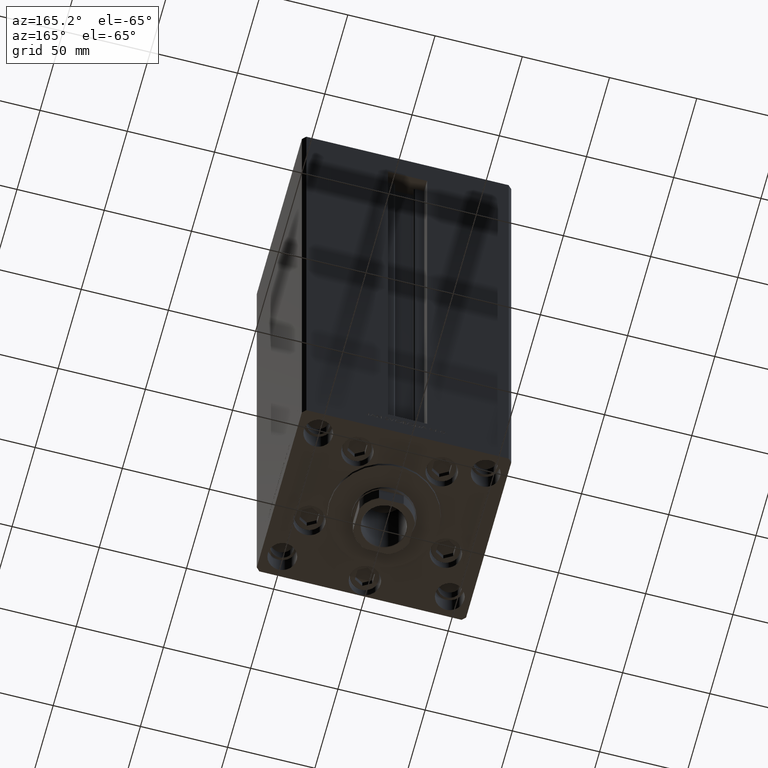
[diagram: clean part render]
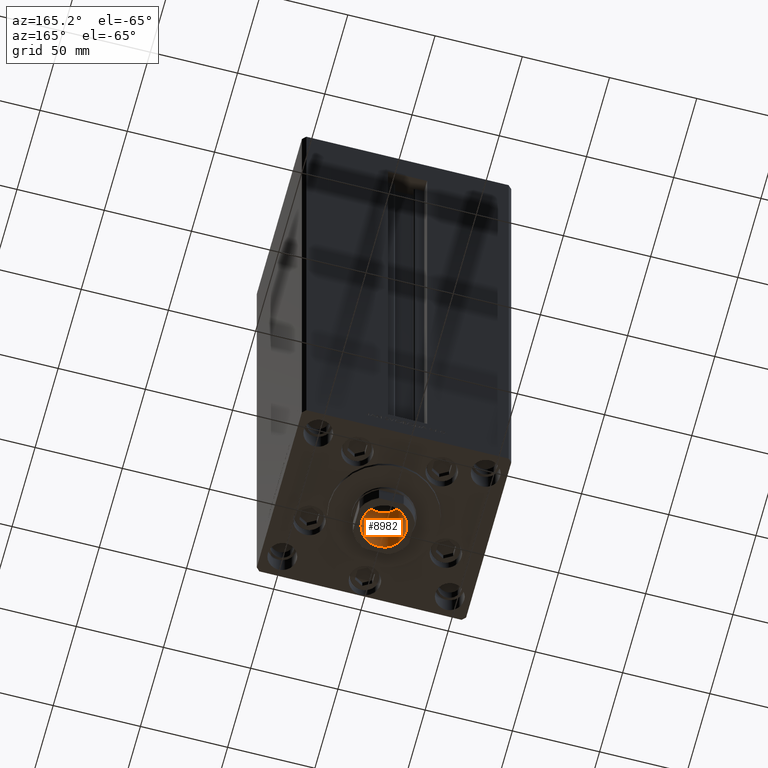
[diagram: same view with one face highlighted and labeled with its STEP entity id]
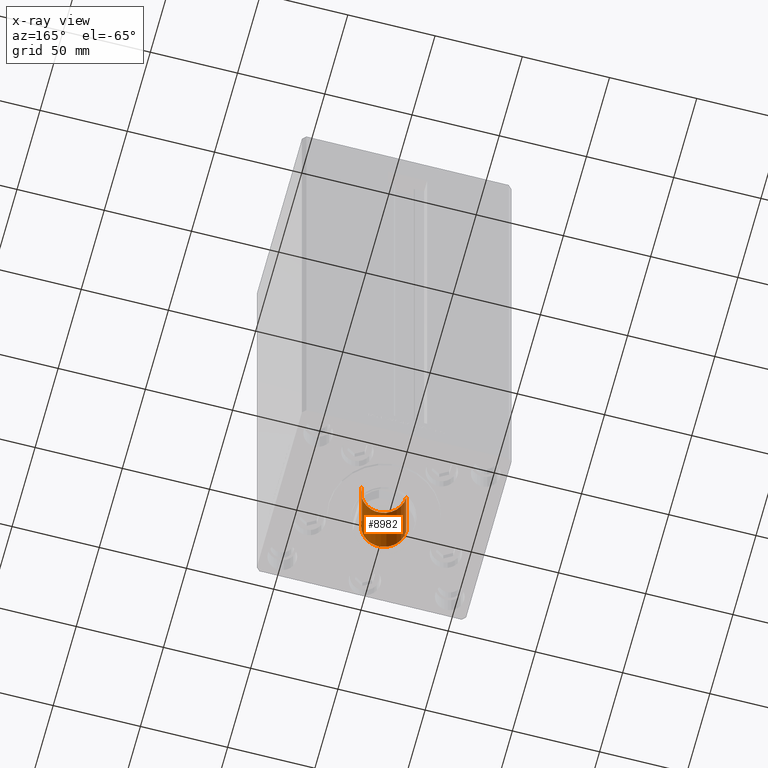
[diagram: x-ray of the same camera — body ghosted, the highlighted face saturated]
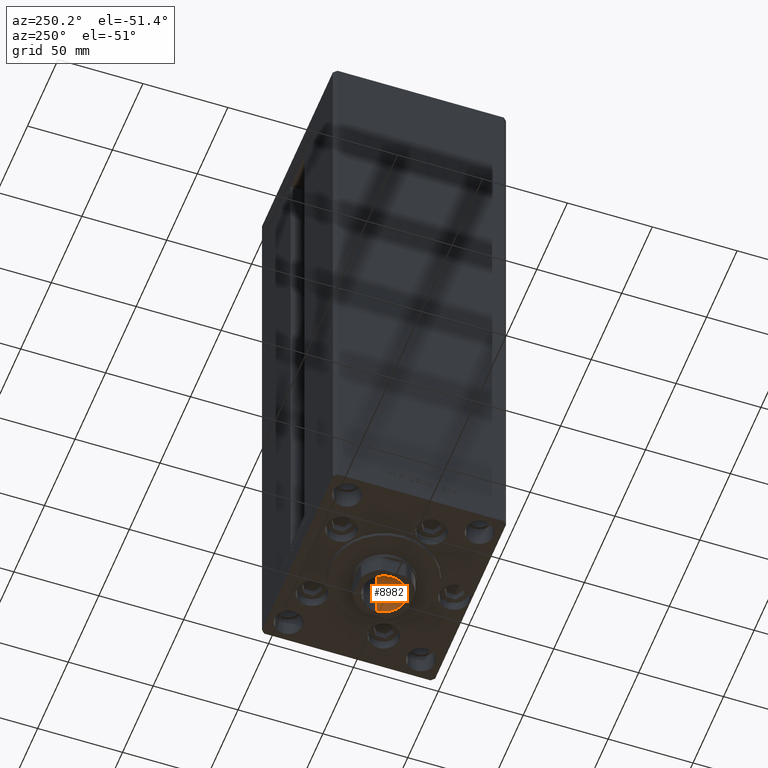
[diagram: same view with one face highlighted and labeled with its STEP entity id]
A machine part, auxiliary view. The second image highlights one B-rep face of the part: STEP entity #8982.
The next image is the same camera in x-ray: the body ghosted, the highlighted face saturated — about 0% of this face is hidden behind the body in this view.
A second angle (auxiliary view) of the same face is appended — the face is thin or edge-on in the first view.
In plain terms, the highlighted cylindrical surface (edge-blend (fillet) strip) has radius 12.75 mm, axis along (0, 0, -1).
Its self-contained STEP definition (entity closure, byte-faithful):
#1299 = DIRECTION ( 'NONE',  ( 1.000000000000000000, 0.000000000000000000, 0.000000000000000000 ) ) ;
#3762 = ORIENTED_EDGE ( 'NONE', *, *, #17667, .F. ) ;
#4744 = EDGE_CURVE ( 'NONE', #11945, #43362, #13849, .T. ) ;
#5919 = DIRECTION ( 'NONE',  ( -0.000000000000000000, -0.000000000000000000, 1.000000000000000000 ) ) ;
#6200 = VERTEX_POINT ( 'NONE', #19496 ) ;
#6257 = CYLINDRICAL_SURFACE ( 'NONE', #14934, 12.74999999999999467 ) ;
#8982 = ADVANCED_FACE ( 'NONE', ( #46605 ), #6257, .F. ) ;
#11607 = VECTOR ( 'NONE', #43698, 1000.000000000000000 ) ;
#11945 = VERTEX_POINT ( 'NONE', #26464 ) ;
#13660 = ORIENTED_EDGE ( 'NONE', *, *, #20206, .F. ) ;
#13849 = LINE ( 'NONE', #44179, #11607 ) ;
#14223 = CARTESIAN_POINT ( 'NONE',  ( 12.74999999999999112, 0.000000000000000000, 294.2500000000000000 ) ) ;
#14934 = AXIS2_PLACEMENT_3D ( 'NONE', #46113, #35169, #42375 ) ;
#17516 = VERTEX_POINT ( 'NONE', #14223 ) ;
#17554 = CARTESIAN_POINT ( 'NONE',  ( 0.000000000000000000, 0.000000000000000000, 338.9500000000000455 ) ) ;
#17667 = EDGE_CURVE ( 'NONE', #17516, #6200, #24574, .T. ) ;
#17921 = ORIENTED_EDGE ( 'NONE', *, *, #22061, .T. ) ;
#19496 = CARTESIAN_POINT ( 'NONE',  ( 12.74999999999999467, 0.000000000000000000, 338.9500000000000455 ) ) ;
#20206 = EDGE_CURVE ( 'NONE', #11945, #17516, #45557, .T. ) ;
#22061 = EDGE_CURVE ( 'NONE', #43362, #6200, #43991, .T. ) ;
#22577 = AXIS2_PLACEMENT_3D ( 'NONE', #17554, #28748, #43893 ) ;
#24574 = LINE ( 'NONE', #43926, #36839 ) ;
#26464 = CARTESIAN_POINT ( 'NONE',  ( -12.74999999999999112, 1.561424668912874125E-15, 294.2500000000000000 ) ) ;
#28748 = DIRECTION ( 'NONE',  ( 0.000000000000000000, 0.000000000000000000, 1.000000000000000000 ) ) ;
#31275 = AXIS2_PLACEMENT_3D ( 'NONE', #39084, #35348, #1299 ) ;
#31375 = ORIENTED_EDGE ( 'NONE', *, *, #4744, .T. ) ;
#34050 = CARTESIAN_POINT ( 'NONE',  ( -12.74999999999999467, 1.561424668912874519E-15, 338.9500000000000455 ) ) ;
#35169 = DIRECTION ( 'NONE',  ( -0.000000000000000000, -0.000000000000000000, 1.000000000000000000 ) ) ;
#35348 = DIRECTION ( 'NONE',  ( -0.000000000000000000, -0.000000000000000000, 1.000000000000000000 ) ) ;
#36839 = VECTOR ( 'NONE', #5919, 1000.000000000000000 ) ;
#39084 = CARTESIAN_POINT ( 'NONE',  ( 0.000000000000000000, 0.000000000000000000, 294.2500000000000000 ) ) ;
#39275 = EDGE_LOOP ( 'NONE', ( #13660, #31375, #17921, #3762 ) ) ;
#42375 = DIRECTION ( 'NONE',  ( 1.000000000000000000, 0.000000000000000000, 0.000000000000000000 ) ) ;
#43362 = VERTEX_POINT ( 'NONE', #34050 ) ;
#43698 = DIRECTION ( 'NONE',  ( -0.000000000000000000, -0.000000000000000000, 1.000000000000000000 ) ) ;
#43893 = DIRECTION ( 'NONE',  ( 1.000000000000000000, 0.000000000000000000, 0.000000000000000000 ) ) ;
#43926 = CARTESIAN_POINT ( 'NONE',  ( 12.74999999999999467, 0.000000000000000000, 339.2500000000000000 ) ) ;
#43991 = CIRCLE ( 'NONE', #22577, 12.74999999999999467 ) ;
#44179 = CARTESIAN_POINT ( 'NONE',  ( -12.74999999999999467, 1.561424668912874519E-15, 339.2500000000000000 ) ) ;
#45557 = CIRCLE ( 'NONE', #31275, 12.74999999999999112 ) ;
#46113 = CARTESIAN_POINT ( 'NONE',  ( 0.000000000000000000, 0.000000000000000000, 339.2500000000000000 ) ) ;
#46605 = FACE_OUTER_BOUND ( 'NONE', #39275, .T. ) ;